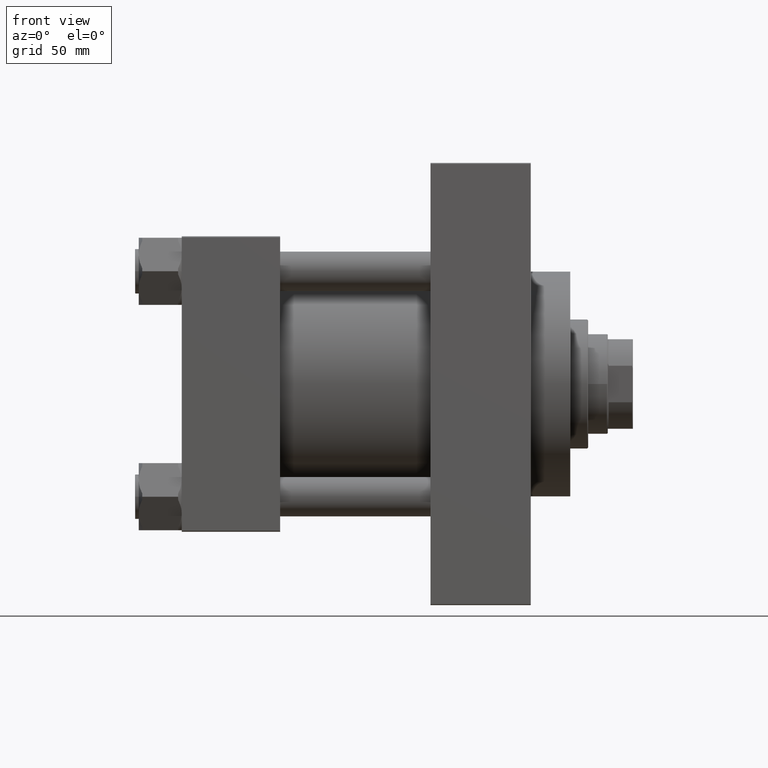
[diagram: clean part render]
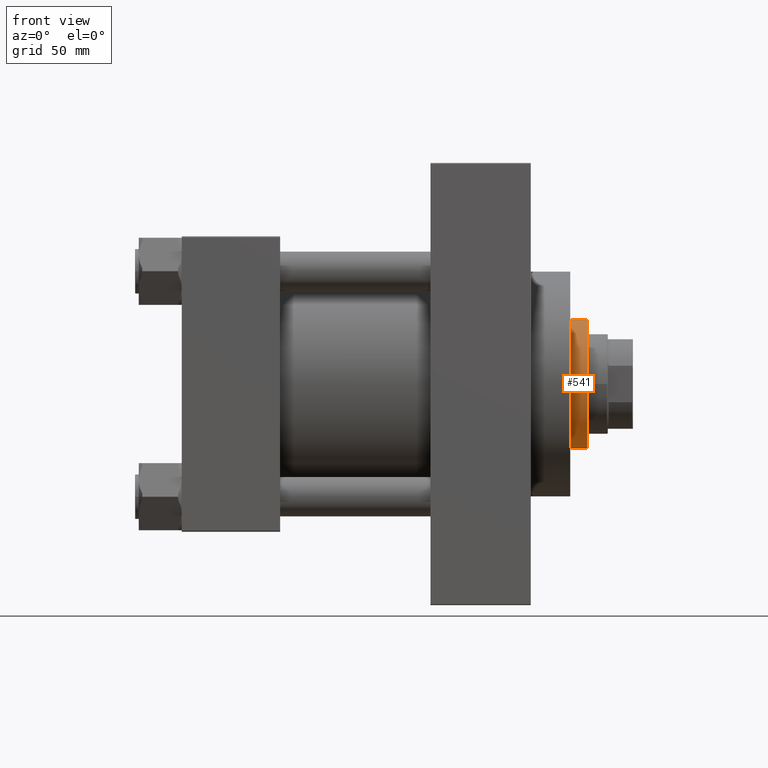
[diagram: same view with one face highlighted and labeled with its STEP entity id]
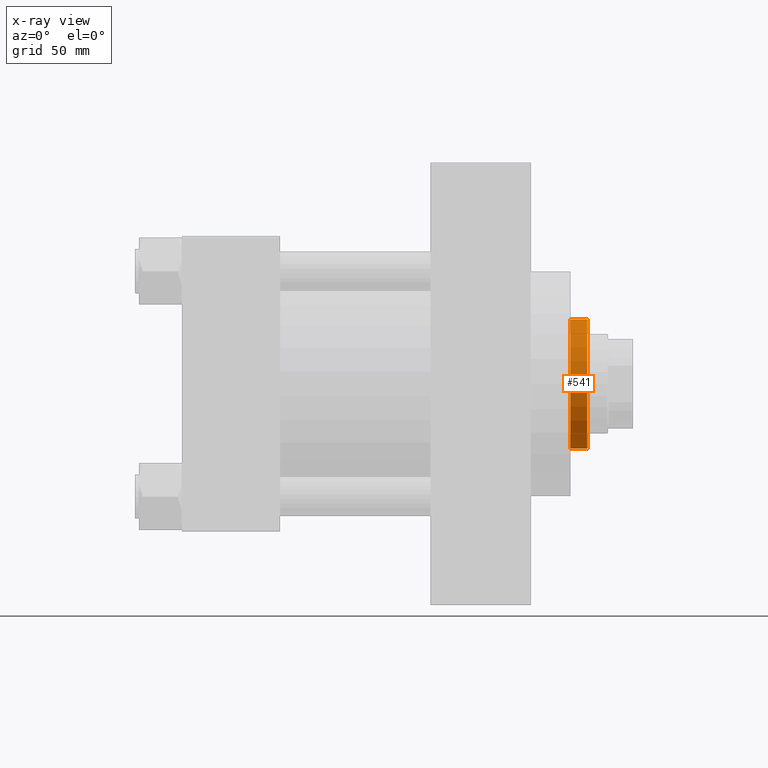
[diagram: x-ray of the same camera — body ghosted, the highlighted face saturated]
A machine part, front view. The second image highlights one B-rep face of the part: STEP entity #541.
The next image is the same camera in x-ray: the body ghosted, the highlighted face saturated — about 0% of this face is hidden behind the body in this view.
In plain terms, the highlighted cylindrical surface (partial cylindrical patch) has radius 36 mm, axis along (-1, 0, 0).
Its self-contained STEP definition (entity closure, byte-faithful):
#541 = ADVANCED_FACE ( 'NONE', ( #16842 ), #32326, .T. ) ;
#1549 = VERTEX_POINT ( 'NONE', #33990 ) ;
#2332 = DIRECTION ( 'NONE',  ( -1.000000000000000000, 0.000000000000000000, 0.000000000000000000 ) ) ;
#5761 = CARTESIAN_POINT ( 'NONE',  ( -36.00000000000000000, 0.000000000000000000, 43.25999999999999801 ) ) ;
#6312 = ORIENTED_EDGE ( 'NONE', *, *, #8641, .F. ) ;
#6449 = DIRECTION ( 'NONE',  ( -0.000000000000000000, -0.000000000000000000, -1.000000000000000000 ) ) ;
#7408 = CARTESIAN_POINT ( 'NONE',  ( -36.00000000000000000, 0.000000000000000000, 53.26000000000000512 ) ) ;
#7508 = ORIENTED_EDGE ( 'NONE', *, *, #33752, .T. ) ;
#8641 = EDGE_CURVE ( 'NONE', #1549, #46170, #40549, .T. ) ;
#10102 = DIRECTION ( 'NONE',  ( 0.000000000000000000, 0.000000000000000000, -1.000000000000000000 ) ) ;
#13012 = CARTESIAN_POINT ( 'NONE',  ( 0.000000000000000000, 0.000000000000000000, 52.75999999999999091 ) ) ;
#13116 = AXIS2_PLACEMENT_3D ( 'NONE', #13012, #10102, #46897 ) ;
#15090 = CARTESIAN_POINT ( 'NONE',  ( 36.00000000000000000, 4.408728476930470856E-15, 43.25999999999999801 ) ) ;
#16547 = DIRECTION ( 'NONE',  ( 0.000000000000000000, 0.000000000000000000, 1.000000000000000000 ) ) ;
#16772 = AXIS2_PLACEMENT_3D ( 'NONE', #16782, #16547, #35166 ) ;
#16782 = CARTESIAN_POINT ( 'NONE',  ( 0.000000000000000000, 0.000000000000000000, 43.25999999999999801 ) ) ;
#16842 = FACE_OUTER_BOUND ( 'NONE', #39598, .T. ) ;
#17580 = CIRCLE ( 'NONE', #16772, 36.00000000000000000 ) ;
#18041 = EDGE_CURVE ( 'NONE', #31378, #46170, #17580, .T. ) ;
#19110 = ORIENTED_EDGE ( 'NONE', *, *, #18041, .T. ) ;
#19290 = AXIS2_PLACEMENT_3D ( 'NONE', #32571, #43704, #2332 ) ;
#27034 = CIRCLE ( 'NONE', #13116, 36.00000000000000000 ) ;
#28484 = DIRECTION ( 'NONE',  ( -0.000000000000000000, -0.000000000000000000, -1.000000000000000000 ) ) ;
#30706 = EDGE_CURVE ( 'NONE', #1549, #34618, #27034, .T. ) ;
#31378 = VERTEX_POINT ( 'NONE', #15090 ) ;
#32326 = CYLINDRICAL_SURFACE ( 'NONE', #19290, 36.00000000000000000 ) ;
#32571 = CARTESIAN_POINT ( 'NONE',  ( 0.000000000000000000, 0.000000000000000000, 53.26000000000000512 ) ) ;
#33038 = CARTESIAN_POINT ( 'NONE',  ( 36.00000000000000000, 4.408728476930470856E-15, 53.26000000000000512 ) ) ;
#33752 = EDGE_CURVE ( 'NONE', #34618, #31378, #40295, .T. ) ;
#33990 = CARTESIAN_POINT ( 'NONE',  ( -36.00000000000000000, 0.000000000000000000, 52.75999999999999091 ) ) ;
#34618 = VERTEX_POINT ( 'NONE', #37725 ) ;
#35166 = DIRECTION ( 'NONE',  ( 1.000000000000000000, 0.000000000000000000, 0.000000000000000000 ) ) ;
#37725 = CARTESIAN_POINT ( 'NONE',  ( 36.00000000000000000, 4.408728476930470856E-15, 52.75999999999999091 ) ) ;
#38723 = VECTOR ( 'NONE', #6449, 1000.000000000000000 ) ;
#39598 = EDGE_LOOP ( 'NONE', ( #43571, #7508, #19110, #6312 ) ) ;
#40295 = LINE ( 'NONE', #33038, #38723 ) ;
#40549 = LINE ( 'NONE', #7408, #41869 ) ;
#41869 = VECTOR ( 'NONE', #28484, 1000.000000000000000 ) ;
#43571 = ORIENTED_EDGE ( 'NONE', *, *, #30706, .T. ) ;
#43704 = DIRECTION ( 'NONE',  ( -0.000000000000000000, -0.000000000000000000, -1.000000000000000000 ) ) ;
#46170 = VERTEX_POINT ( 'NONE', #5761 ) ;
#46897 = DIRECTION ( 'NONE',  ( 1.000000000000000000, 0.000000000000000000, 0.000000000000000000 ) ) ;